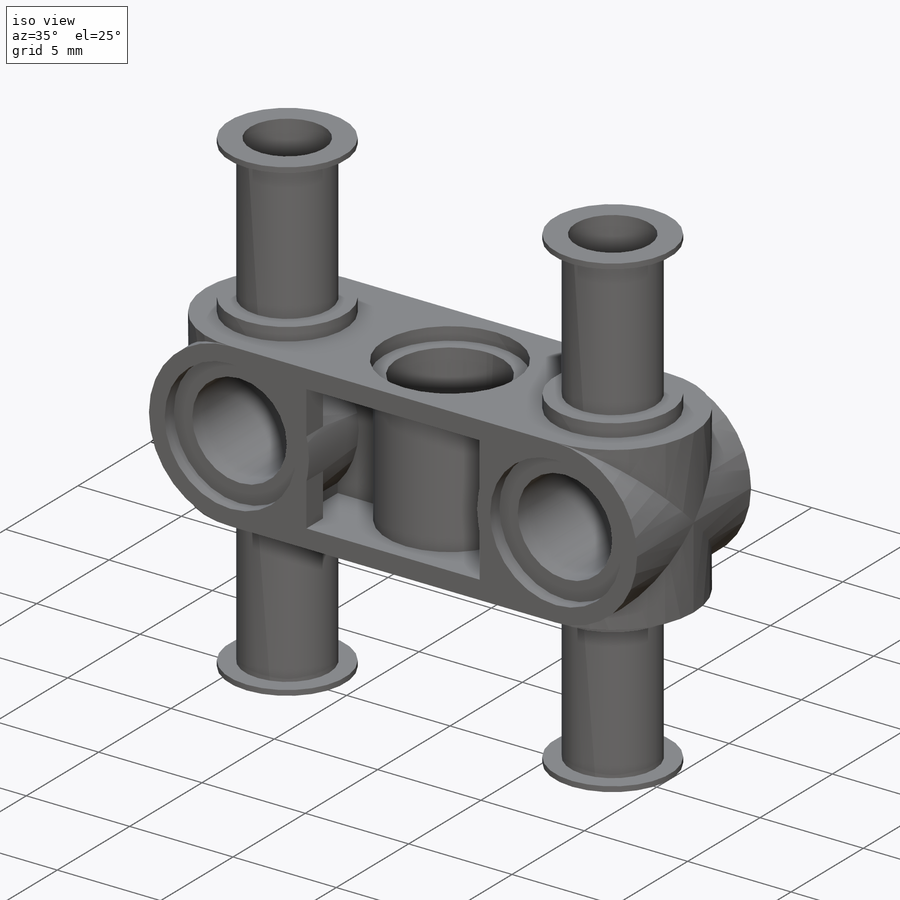
[diagram: iso view]
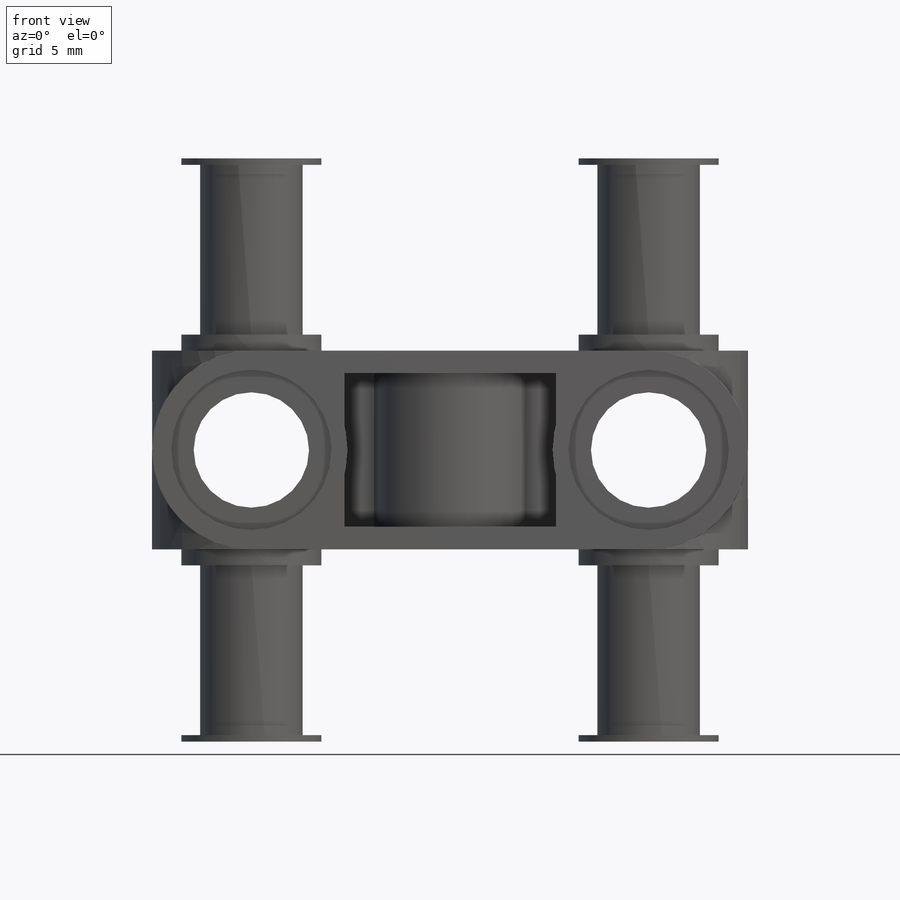
[diagram: front view]
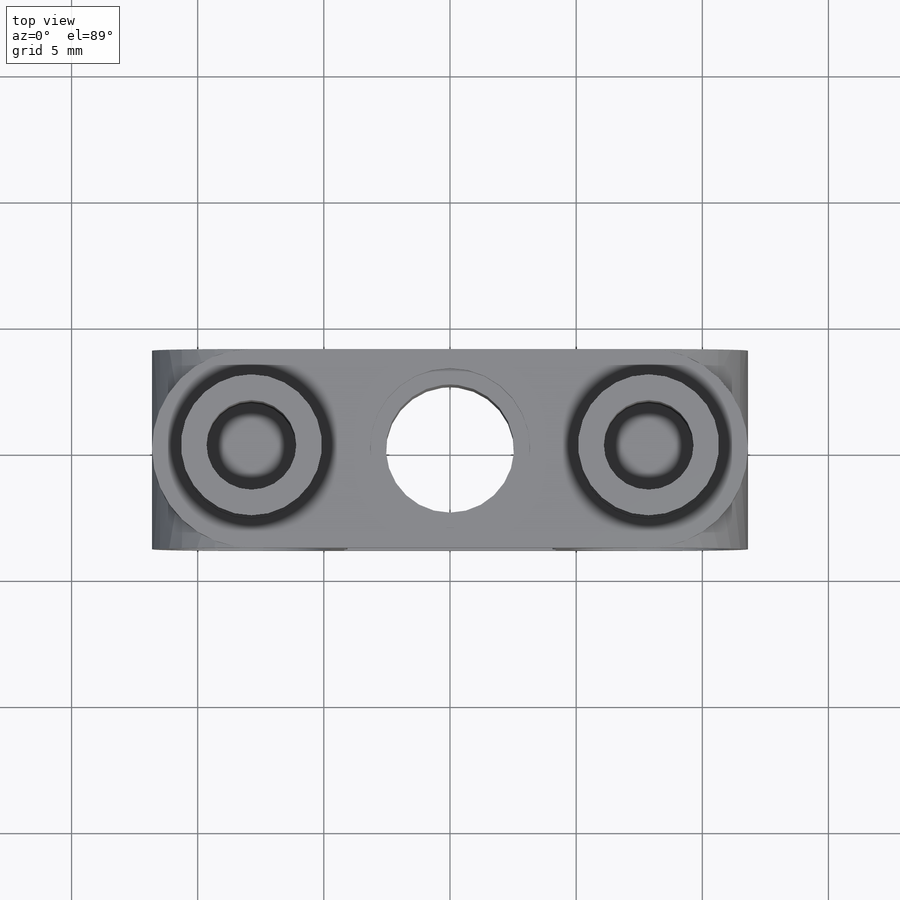
[diagram: top view]
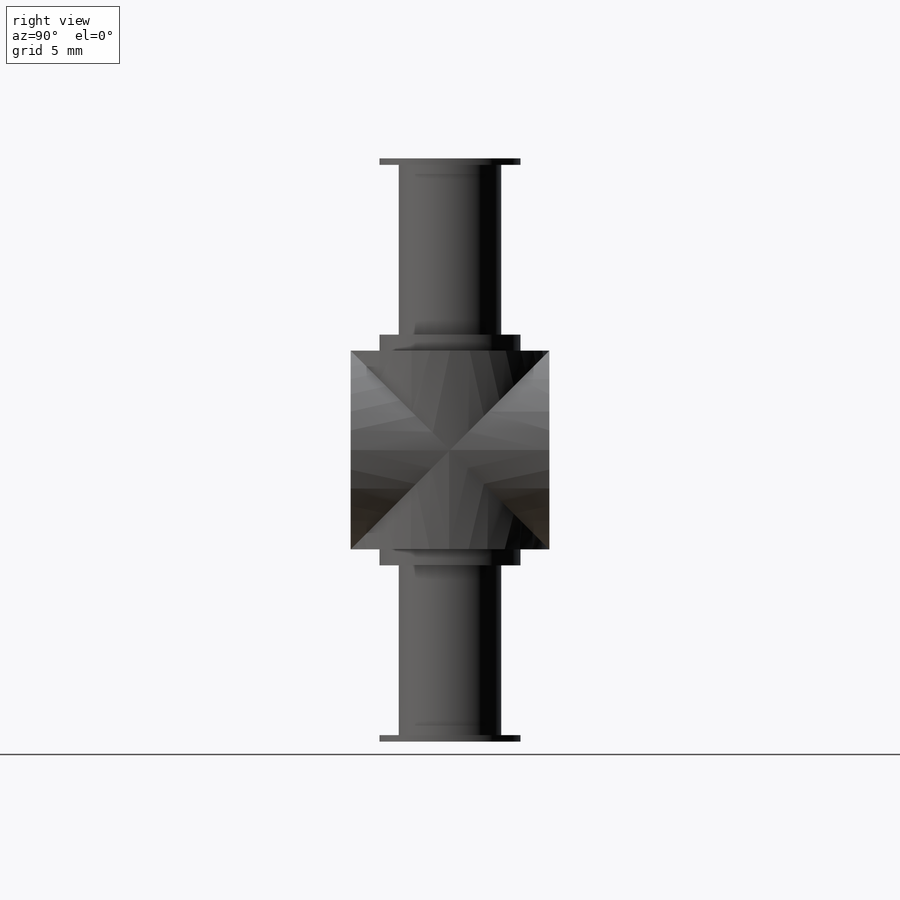
[diagram: right view]
SOLIDWORKS PART (.sldprt)
format: sldprt  version: not decoded by parser v0  size: 509,952 bytes
history: native  units: mm
features: sketch x13, cut_extrude x7, extrude x6, mirror x3, material x1 (+11 scaffold rows collapsed)
feature tree (41):
  scaffold x11  (default folders/planes/origin — collapsed)
  material  "PVC Rigid"
  sketch  "Sketch1"  dims[c1.D3=5.08mm c1.D4=~13.501436mm c1.D1=8.001mm c1.D2=7.874mm c2.D4=7.874mm c2.D5=22.86mm c2.D6=22.86mm c2.D7=22.86mm c3.D6=22.86mm c3.D5=22.86mm c4.D6=22.86mm c4.D5=26.416mm c5.D6=~20.982222mm c5.D5=22.86mm c5.D1=7.874mm]
  extrude  "Extrude1"  Depth=3.937mm
  sketch  "Sketch2"  dims[D1=5.588mm]
  cut_extrude  "Cut-Extrude1"  Depth=0.254mm
  sketch  "Sketch3"  dims[D1=5.588mm]
  extrude  "Extrude2"  Depth=0.635mm
  sketch  "Sketch5"  dims[c1.D2=4.064mm c1.D3=~3.123199mm c1.D1=0.0mm c2.D2=0.0mm c2.D3=0.254mm c2.D4=0.254mm c2.D1=0.254mm]
  extrude  "Extrude4"  Depth=6.985mm
  sketch  "Sketch6"  dims[D1=0.508mm]
  extrude  "Extrude5"  Depth=0.254mm
  sketch  "Sketch7"  dims[D1=6.35mm]
  extrude  "Extrude6"  Depth=7.874mm
  sketch  "Sketch8"
  cut_extrude  "Cut-Extrude2"  Depth=3.556mm
  sketch  "Sketch9"  dims[D1=4.572mm]
  cut_extrude  "Cut-Extrude3"  [1 undecoded]
  sketch  "Sketch10"  dims[D1=6.35mm]
  cut_extrude  "Cut-Extrude4"  Depth=0.635mm
  mirror  "Mirror2"
  sketch  "Sketch11"  dims[c1.D1=0.508mm c1.D2=0.508mm c2.D1=0.508mm c2.D3=0.508mm c2.D4=0.508mm]
  cut_extrude  "Cut-Extrude6"  Depth=3.048mm
  sketch  "Sketch13"  dims[D1=0.0mm]
  cut_extrude  "Cut-Extrude7"  [1 undecoded]
  sketch  "Sketch14"  dims[D1=6.35mm]
  cut_extrude  "Cut-Extrude8"  Depth=0.635mm
  sketch  "Sketch17"  dims[D1=3.81mm]
  extrude  "Extrude8"  Depth=7.112mm
  mirror  "Mirror3"
  mirror  "Mirror1"
decode coverage: 23 of 29 modeling features carry decoded parameters
note: ~ marks probable driven/reference dimensions
note: 2 parameter values undecoded
note: suppression state not decoded; provenance and decode notes live in map.json
